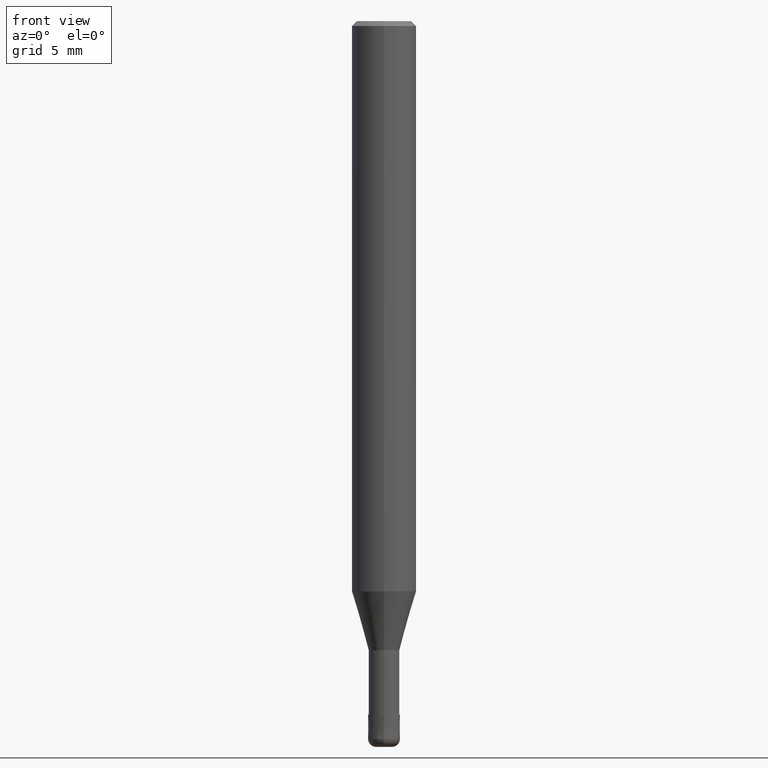
[diagram: clean part render]
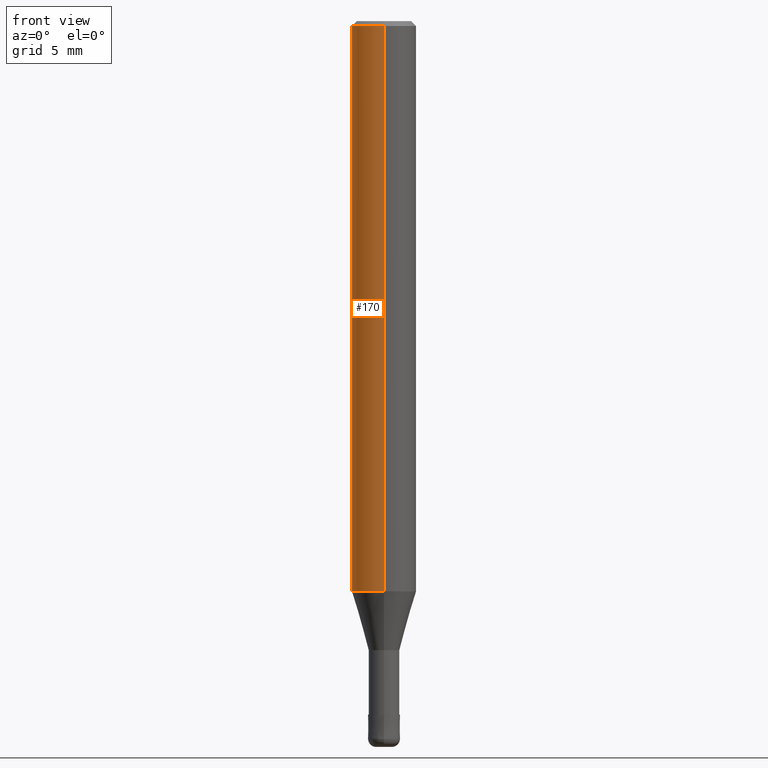
[diagram: same view with one face highlighted and labeled with its STEP entity id]
A machine part, front view. The second image highlights one B-rep face of the part: STEP entity #170.
In plain terms, the highlighted cylindrical surface (edge-blend (fillet) strip) has radius 2 mm, axis along (-0, -0, 1).
Its self-contained STEP definition (entity closure, byte-faithful):
#110=EDGE_CURVE('',#172,#196,#263,.T.);
#142=EDGE_CURVE('',#196,#222,#299,.T.);
#164=EDGE_CURVE('',#222,#186,#325,.T.);
#170=ADVANCED_FACE('',(#332),#333,.T.);
#172=VERTEX_POINT('',#335);
#186=VERTEX_POINT('',#351);
#196=VERTEX_POINT('',#361);
#222=VERTEX_POINT('',#391);
#228=EDGE_CURVE('',#172,#186,#399,.T.);
#263=LINE('',#430,#431);
#299=CIRCLE('',#475,2.0);
#325=LINE('',#508,#509);
#332=FACE_OUTER_BOUND('',#516,.T.);
#333=CYLINDRICAL_SURFACE('',#517,2.0);
#335=CARTESIAN_POINT('',(2.44921270764475E-016,-2.0,-35.356));
#351=CARTESIAN_POINT('',(0.0,2.0,-35.356));
#361=CARTESIAN_POINT('',(2.44921270764475E-016,-2.0,-0.299999999999997));
#391=CARTESIAN_POINT('',(0.0,2.0,-0.299999999999997));
#399=CIRCLE('',#599,2.0);
#430=CARTESIAN_POINT('',(2.44921270764475E-016,-2.0,-17.828));
#431=VECTOR('',#614,1.0);
#475=AXIS2_PLACEMENT_3D('',#657,#658,#659);
#508=CARTESIAN_POINT('',(-2.44921270764475E-016,2.0,-17.828));
#509=VECTOR('',#704,1.0);
#516=EDGE_LOOP('',(#712,#713,#714,#715));
#517=AXIS2_PLACEMENT_3D('',#716,#717,#718);
#599=AXIS2_PLACEMENT_3D('',#800,#801,#802);
#614=DIRECTION('',(-0.0,-0.0,1.0));
#657=CARTESIAN_POINT('',(0.0,0.0,-0.299999999999997));
#658=DIRECTION('',(0.0,0.0,-1.0));
#659=DIRECTION('',(0.0,1.0,0.0));
#704=DIRECTION('',(0.0,0.0,-1.0));
#712=ORIENTED_EDGE('',*,*,#164,.T.);
#713=ORIENTED_EDGE('',*,*,#228,.F.);
#714=ORIENTED_EDGE('',*,*,#110,.T.);
#715=ORIENTED_EDGE('',*,*,#142,.T.);
#716=CARTESIAN_POINT('',(0.0,0.0,-17.828));
#717=DIRECTION('',(-0.0,-0.0,1.0));
#718=DIRECTION('',(0.0,1.0,0.0));
#800=CARTESIAN_POINT('',(0.0,0.0,-35.356));
#801=DIRECTION('',(0.0,0.0,-1.0));
#802=DIRECTION('',(0.0,1.0,0.0));